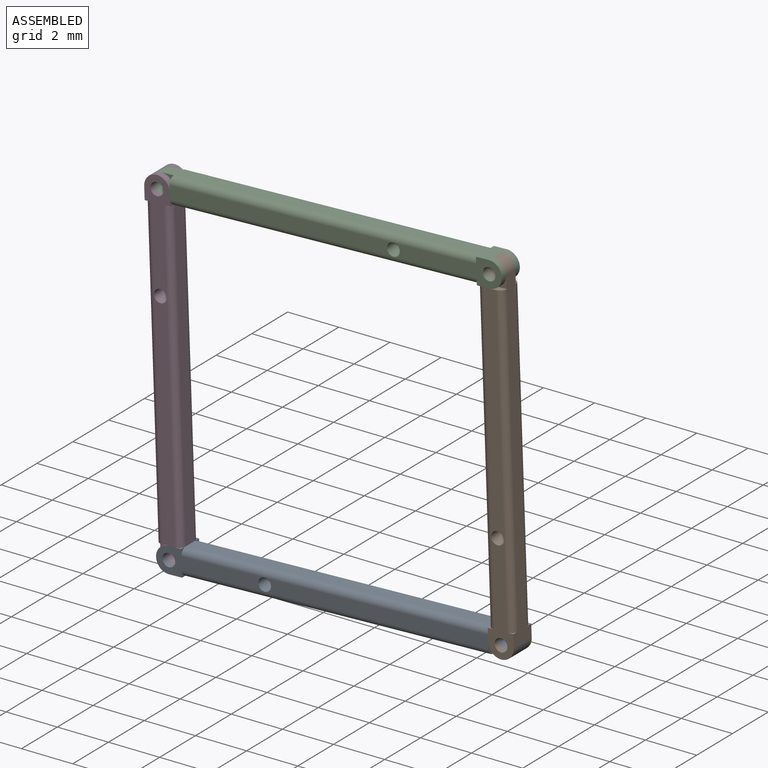
[diagram: assembled view]
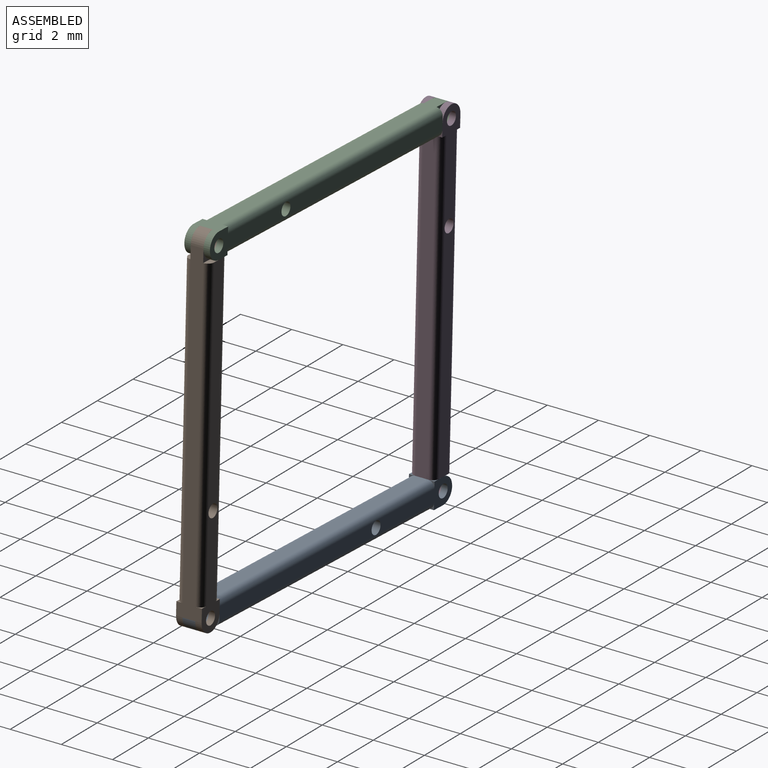
[diagram: assembled view, second angle]
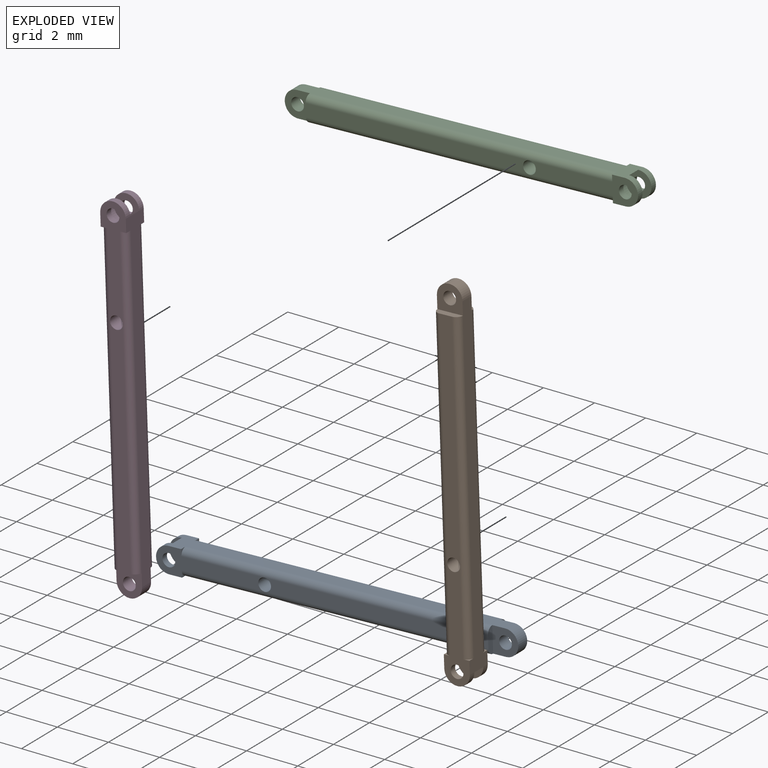
[diagram: exploded view]
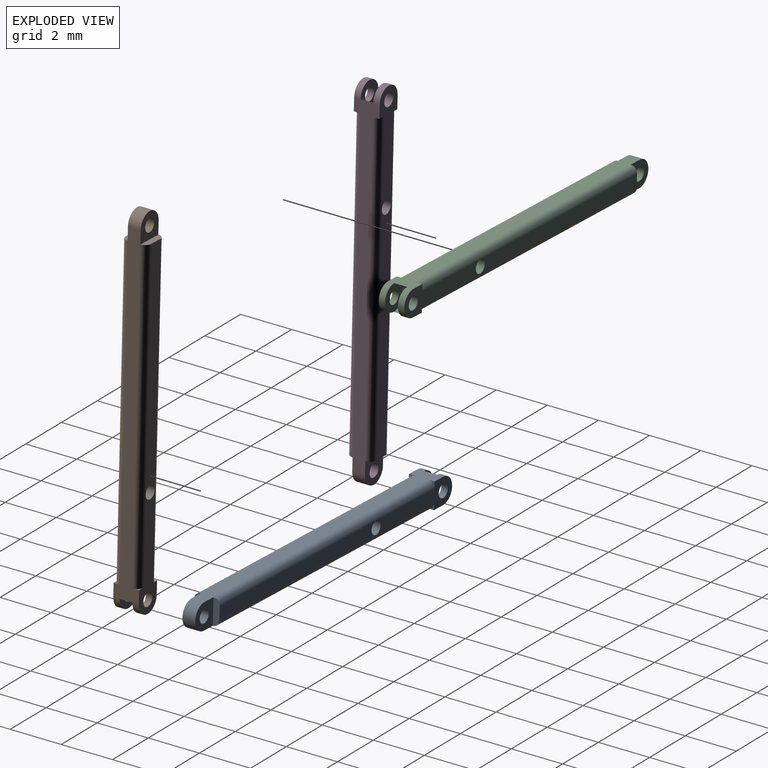
[diagram: exploded view, second angle]
ASSEMBLY  parts=4 mates=4
PART A: 28 faces, bbox 14x1x1 mm
  f0: plane 8.75x0.5mm, normal (0,-1,0), area 4.3mm2, adj f9,f11,f22,f27
  f1: plane 4.25x1mm, normal (0,1,0), area 2.2mm2, adj f4,f8,f10,f12,f14,f15,f16,f18
  f2: cylinder r=0.25mm len=0.5mm, axis (0,-1,0), area 0.4mm2, adj f6,f26
  f3: cylinder r=0.5mm len=1mm, axis (0,-1,0), area 0.4mm2, adj f4,f6,f8,f26
  f4: plane 13x1mm, normal (0,0,1), area 6.7mm2, adj f1,f3,f6,f11,f12,f15,f16,f17
  f5: plane 1x0.25mm, normal (-1,0,0), area 0.2mm2, adj f7,f10,f12,f21
  f6: plane 4.25x1mm, normal (0,-1,0), area 2.2mm2, adj f2,f3,f4,f8,f9,f11,f13,f17
  f7: plane 8.75x0.5mm, normal (0,1,0), area 4.3mm2, adj f5,f10,f12,f27
  f8: plane 13x1mm, normal (0,0,-1), area 6.7mm2, adj f1,f3,f6,f9,f10,f13,f14,f16
  f9: cylinder r=0.25mm len=12mm, axis (1,0,0), area 4.7mm2, adj f0,f6,f8,f13,f22
  f10: cylinder r=0.25mm len=12mm, axis (-1,0,0), area 4.7mm2, adj f1,f5,f7,f8,f14
  f11: cylinder r=0.25mm len=12mm, axis (-1,0,0), area 4.7mm2, adj f0,f4,f6,f17,f22
  f12: cylinder r=0.25mm len=12mm, axis (1,0,0), area 4.7mm2, adj f1,f4,f5,f7,f15
  f13: plane 0.25x0.25mm, normal (-1,0,0), area 0mm2, adj f6,f8,f9
  f14: plane 0.25x0.25mm, normal (-1,0,0), area 0mm2, adj f1,f8,f10
  f15: plane 0.25x0.25mm, normal (-1,0,0), area 0mm2, adj f1,f4,f12
  f16: cylinder r=0.5mm len=1mm, axis (0,-1,0), area 0.4mm2, adj f1,f4,f8,f25
  f17: plane 0.25x0.25mm, normal (-1,0,0), area 0mm2, adj f4,f6,f11
  f18: cylinder r=0.25mm len=0.5mm, axis (0,-1,0), area 0.4mm2, adj f1,f25
  f19: cylinder r=0.25mm len=0.5mm, axis (0,-1,0), area 0.8mm2, adj f21,f23
  f20: cylinder r=0.5mm len=1mm, axis (0,-1,0), area 0.8mm2, adj f4,f8,f21,f23
  f21: plane 1x1mm, normal (0,1,0), area 0.7mm2, adj f4,f5,f8,f19,f20
  f22: plane 1x0.25mm, normal (-1,0,0), area 0.2mm2, adj f0,f9,f11,f23
  f23: plane 1x1mm, normal (0,-1,0), area 0.7mm2, adj f4,f8,f19,f20,f22
  f24: cylinder r=0.5mm len=1mm, axis (0,-1,0), area 0.8mm2, adj f4,f8,f25,f26
  f25: plane 1x1mm, normal (0,-1,0), area 0.6mm2, adj f16,f18,f24
  f26: plane 1x1mm, normal (0,1,0), area 0.6mm2, adj f2,f3,f24
  f27: cylinder r=0.25mm len=1mm, axis (0,-1,0), area 1.6mm2, adj f0,f1,f6,f7
PART B: same geometry as A
PART C: same geometry as A
PART D: same geometry as A
PLACE A rot(axis=(0,1,0),178deg) t=(-30.46,-13.12,-15.46)mm
PLACE B rot(axis=(0,1,0),88deg) t=(-6.45,-13.12,-26.22)mm fixed
PLACE C rot(axis=(0,-1,0),2deg) t=(4.32,-13.12,-2.21)mm
PLACE D rot(axis=(0,-1,0),92deg) t=(-19.7,-13.12,8.56)mm
MATE revolute D.f19 <-> A.f2  axis (0,-1,0) through (-19.34,-4.76,-15.56)mm
MATE revolute B.f19 <-> C.f2  axis (0,-1,0) through (-6.81,-4.76,-2.11)mm
MATE revolute A.f19 <-> B.f2  axis (0,-1,0) through (-6.35,-4.76,-15.1)mm
MATE revolute D.f2 <-> C.f19  axis (0,1,0) through (-19.8,-4.76,-2.57)mm
